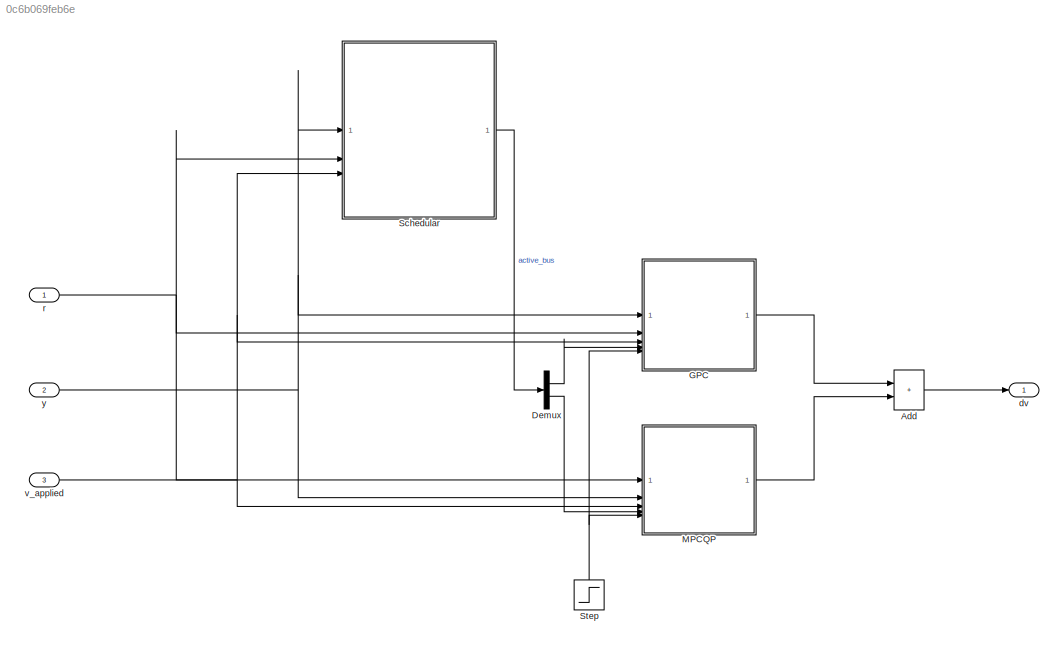
MODEL slx_0c6b069feb6e
KIND model
CONFIG AbsTol = auto
CONFIG EnableMultiTasking = off
CONFIG FixedStep = Ts_local
CONFIG MaxStep = auto
CONFIG MinStep = auto
CONFIG RelTol = 1e-3
CONFIG SampleTimeConstraint = Unconstrained
CONFIG SolverName = ode14x
CONFIG StartTime = 0.0
CONFIG StopTime = 10.0
BLOCK [Sum] Add
  IconShape = rectangular
BLOCK [Demux] Demux
  Outputs = 2
BLOCK [ModelReference] GPC
  ModelNameDialog = GPC.slx
  ModelReferenceVersion = 1.264
BLOCK [ModelReference] MPCQP
  ModelNameDialog = MPCQP.slx
  ModelReferenceVersion = 1.56
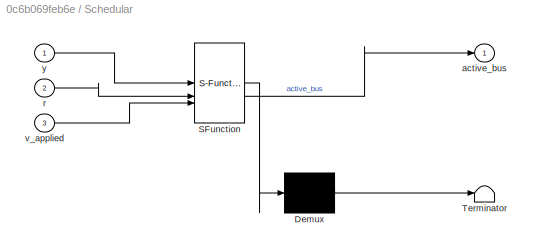
BLOCK [SubSystem] Schedular
  ErrorFcn = Stateflow.Translate.translate
  PermitHierarchicalResolution = ExplicitOnly
  SFBlockType = MATLAB Function
  SystemSampleTime = Ts_ctrl
  TreatAsAtomicUnit = on
BLOCK [Demux] Schedular/ Demux 
  Outputs = 1
BLOCK [S-Function] Schedular/ SFunction 
  EnableBusSupport = off
  FunctionName = sf_sfun
  PortCounts = [3 2]
  SFcnIsStateOwnerBlock = off
  SFunctionDeploymentMode = off
  Tag = Stateflow S-Function 2
BLOCK [Terminator] Schedular/ Terminator 
BLOCK [Outport] Schedular/active_bus
BLOCK [Inport] Schedular/r
  Port = 2
BLOCK [Inport] Schedular/v_applied
  Port = 3
BLOCK [Inport] Schedular/y
BLOCK [Step] Step
  After = 0
  Before = 1
  NameLocation = right
  SampleTime = Ts_ctrl
  Time = 0.1
BLOCK [Outport] dv
  NameLocation = right
BLOCK [Inport] r
  NameLocation = left
BLOCK [Inport] v_applied
  NameLocation = left
  Port = 3
BLOCK [Inport] y
  NameLocation = left
  Port = 2
LINE Add:1 -> dv:1
LINE Demux:1 -> GPC:4
LINE Demux:2 -> MPCQP:4
LINE GPC:1 -> Add:1
LINE MPCQP:1 -> Add:2
LINE Schedular:1 -> Demux:1
NET Step:1 -> GPC:5, MPCQP:5
NET r:1 -> GPC:2, MPCQP:1, Schedular:2
NET v_applied:1 -> GPC:3, MPCQP:3, Schedular:3
NET y:1 -> GPC:1, MPCQP:2, Schedular:1
note: NET lines group one-source signal fan-out (src -> all destinations, sorted); 1:1 wires keep LINE
CHART Schedular states=1 transitions=1
  STATE_LABEL 'eML_blk_kernel()'
  STATE_LABEL 'SCRIPT:\nfunction active_bus = schedular(y, r, v_applied)\n\n    persistent r_prev state cnt;\n\n    % Define states\n    REF_CHANGE = 1;\n    STABLE     = 2;\n    BRIDGE     = 3;\n\n    % Tolerance for floating-point comparison\n    tol = 1e-2;\n\n    % Initialization\n    if isempty(r_prev)\n        r_prev = zeros(size(r));\n    end\n\n    if isempty(state)\n        state = REF_CHANGE;\n    end\n\n    if isempty(cnt)...<+931ch>'
CHART  states=0 transitions=0
